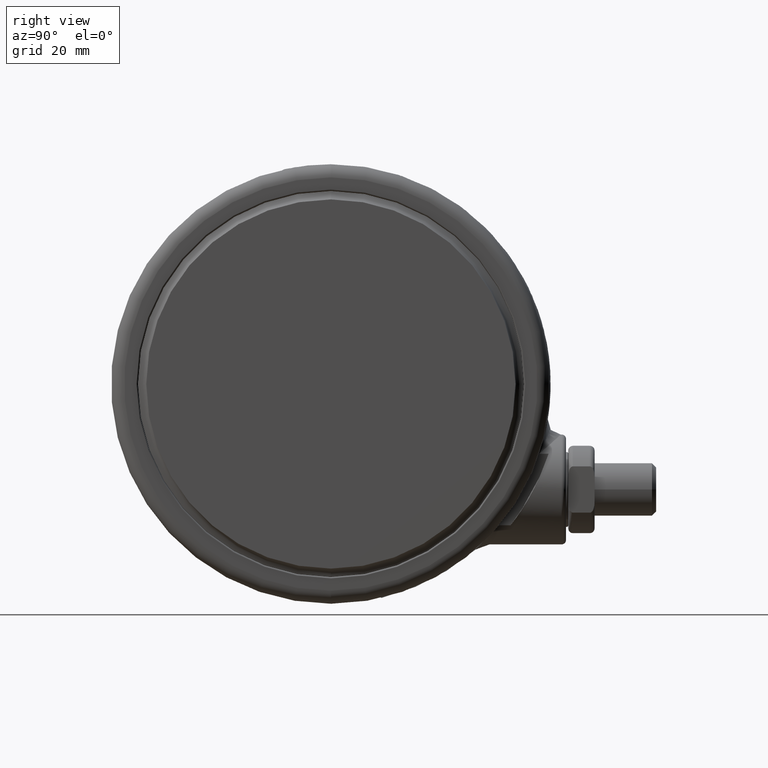
[diagram: clean part render]
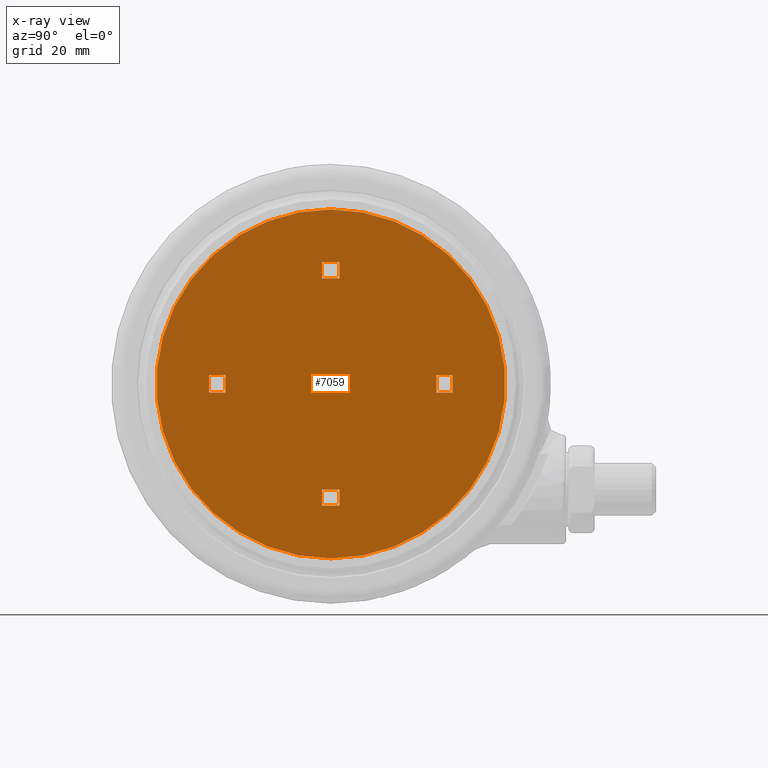
[diagram: x-ray — body ghosted, one internal face saturated and labeled with its STEP entity id]
A machine part, right view, then the same camera in x-ray: the body is ghosted and one INTERNAL B-rep face — a face not visible from any outside direction — is saturated and labeled: STEP entity #7059.
In plain terms, the highlighted planar face has unit normal (-1, 0, 0).
Its self-contained STEP definition (entity closure, byte-faithful):
#140 = VECTOR ( 'NONE', #25607, 1000.000000000000000 ) ;
#273 = VERTEX_POINT ( 'NONE', #28463 ) ;
#448 = EDGE_CURVE ( 'NONE', #24892, #6587, #24113, .T. ) ;
#613 = EDGE_LOOP ( 'NONE', ( #26790, #7334, #29076, #7454 ) ) ;
#907 = DIRECTION ( 'NONE',  ( -1.000000000000000000, 4.413456915335259200E-017, 4.709952866388670900E-033 ) ) ;
#1018 = DIRECTION ( 'NONE',  ( -1.000000000000000000, 4.413456915335259200E-017, 4.709952866388670900E-033 ) ) ;
#1118 = CARTESIAN_POINT ( 'NONE',  ( 24.00000000000000000, 1.999999999999915800, -46.79999999999990500 ) ) ;
#1181 = DIRECTION ( 'NONE',  ( -1.000000000000000000, 4.413456915335259200E-017, 4.709952866388670900E-033 ) ) ;
#1222 = CARTESIAN_POINT ( 'NONE',  ( 1.999999999999999100, -24.00000000000000000, -46.79999999999991200 ) ) ;
#1419 = VECTOR ( 'NONE', #1181, 1000.000000000000000 ) ;
#1559 = CARTESIAN_POINT ( 'NONE',  ( -6.745971164247315500E-015, -1.999999999999998200, -46.79999999999990500 ) ) ;
#1924 = CIRCLE ( 'NONE', #31912, 39.69999999999999600 ) ;
#2181 = EDGE_CURVE ( 'NONE', #21483, #18430, #2873, .T. ) ;
#2293 = CARTESIAN_POINT ( 'NONE',  ( 24.00000000000000000, 1.999999999999915800, -46.79999999999990500 ) ) ;
#2371 = ORIENTED_EDGE ( 'NONE', *, *, #2460, .F. ) ;
#2460 = EDGE_CURVE ( 'NONE', #12896, #6587, #5280, .T. ) ;
#2841 = DIRECTION ( 'NONE',  ( -3.535615907996487800E-015, -1.000000000000000000, -8.826913830670518300E-017 ) ) ;
#2870 = VECTOR ( 'NONE', #19458, 1000.000000000000000 ) ;
#2873 = LINE ( 'NONE', #18506, #22043 ) ;
#3012 = CARTESIAN_POINT ( 'NONE',  ( 1.222527565547866700E-015, 27.70000000000000300, -46.79999999999990500 ) ) ;
#3054 = ORIENTED_EDGE ( 'NONE', *, *, #12988, .T. ) ;
#3236 = EDGE_LOOP ( 'NONE', ( #26747, #17881, #16867, #2371 ) ) ;
#3380 = CARTESIAN_POINT ( 'NONE',  ( -1.999999999999998700, 27.70000000000000300, -46.79999999999990500 ) ) ;
#3489 = LINE ( 'NONE', #10615, #4252 ) ;
#3509 = VECTOR ( 'NONE', #22690, 1000.000000000000000 ) ;
#3777 = CARTESIAN_POINT ( 'NONE',  ( -1.999999999999999100, 24.00000000000000000, -46.79999999999990500 ) ) ;
#4252 = VECTOR ( 'NONE', #25622, 1000.000000000000000 ) ;
#4350 = EDGE_CURVE ( 'NONE', #28910, #20669, #13379, .T. ) ;
#4617 = FACE_BOUND ( 'NONE', #3236, .T. ) ;
#4676 = DIRECTION ( 'NONE',  ( 4.413456915335259200E-017, 1.000000000000000000, 2.689695003876226800E-016 ) ) ;
#4770 = ORIENTED_EDGE ( 'NONE', *, *, #7699, .T. ) ;
#4988 = ORIENTED_EDGE ( 'NONE', *, *, #4350, .T. ) ;
#5135 = ORIENTED_EDGE ( 'NONE', *, *, #30324, .F. ) ;
#5137 = VERTEX_POINT ( 'NONE', #19628 ) ;
#5172 = CARTESIAN_POINT ( 'NONE',  ( -2.000000000000000000, 1.338847513585790800E-015, -46.79999999999990500 ) ) ;
#5280 = LINE ( 'NONE', #24520, #11157 ) ;
#5481 = VERTEX_POINT ( 'NONE', #21246 ) ;
#5501 = CIRCLE ( 'NONE', #26264, 39.69999999999999600 ) ;
#5735 = LINE ( 'NONE', #13340, #18288 ) ;
#5792 = CARTESIAN_POINT ( 'NONE',  ( 1.787450050710780100E-015, 40.50000000000000000, -46.79999999999990500 ) ) ;
#6007 = CARTESIAN_POINT ( 'NONE',  ( -2.000000000000001300, -27.69999999999999600, -46.79999999999991200 ) ) ;
#6249 = VECTOR ( 'NONE', #19229, 1000.000000000000000 ) ;
#6345 = LINE ( 'NONE', #30249, #32145 ) ;
#6414 = EDGE_CURVE ( 'NONE', #28910, #273, #30096, .T. ) ;
#6587 = VERTEX_POINT ( 'NONE', #3777 ) ;
#6775 = CARTESIAN_POINT ( 'NONE',  ( 2.071189651961985400E-014, 2.000000000000001800, -46.79999999999990500 ) ) ;
#7059 = ADVANCED_FACE ( 'NONE', ( #31990, #30422, #11256, #4617, #23796 ), #8312, .F. ) ;
#7196 = CARTESIAN_POINT ( 'NONE',  ( -39.69999999999999600, 3.327981422412835400E-015, -46.79999999999990500 ) ) ;
#7334 = ORIENTED_EDGE ( 'NONE', *, *, #15486, .T. ) ;
#7454 = ORIENTED_EDGE ( 'NONE', *, *, #2181, .F. ) ;
#7593 = CARTESIAN_POINT ( 'NONE',  ( -2.136241782311115700E-014, -1.999999999999998200, -46.79999999999990500 ) ) ;
#7694 = DIRECTION ( 'NONE',  ( 4.413456915335259200E-017, 1.000000000000000000, 2.689695003876226800E-016 ) ) ;
#7699 = EDGE_CURVE ( 'NONE', #18735, #24570, #1924, .T. ) ;
#8067 = CARTESIAN_POINT ( 'NONE',  ( -27.69999999999959800, 40.50000000000000000, -46.79999999999990500 ) ) ;
#8312 = PLANE ( 'NONE',  #16390 ) ;
#8853 = CARTESIAN_POINT ( 'NONE',  ( 39.69999999999999600, 4.681568813233502500E-015, -46.79999999999990500 ) ) ;
#9507 = CARTESIAN_POINT ( 'NONE',  ( -24.00000000000000000, -1.999999999999747500, -46.79999999999990500 ) ) ;
#9708 = VERTEX_POINT ( 'NONE', #14182 ) ;
#9736 = EDGE_CURVE ( 'NONE', #20669, #28449, #17980, .T. ) ;
#9774 = EDGE_LOOP ( 'NONE', ( #4770, #23367 ) ) ;
#9882 = ORIENTED_EDGE ( 'NONE', *, *, #9736, .T. ) ;
#9991 = LINE ( 'NONE', #19664, #22527 ) ;
#10107 = EDGE_LOOP ( 'NONE', ( #4988, #9882, #31847, #23568 ) ) ;
#10282 = CARTESIAN_POINT ( 'NONE',  ( -24.00000000000000000, 2.000000000000252200, -46.79999999999990500 ) ) ;
#10432 = EDGE_CURVE ( 'NONE', #12896, #5137, #25799, .T. ) ;
#10615 = CARTESIAN_POINT ( 'NONE',  ( 1.999999999999999100, -24.00000000000000000, -46.79999999999991200 ) ) ;
#10626 = LINE ( 'NONE', #1559, #23939 ) ;
#10964 = VERTEX_POINT ( 'NONE', #31031 ) ;
#11157 = VECTOR ( 'NONE', #12026, 1000.000000000000000 ) ;
#11211 = CARTESIAN_POINT ( 'NONE',  ( 1.465618459832179300E-033, 1.575839027024737700E-015, -46.79999999999990500 ) ) ;
#11256 = FACE_BOUND ( 'NONE', #613, .T. ) ;
#11568 = DIRECTION ( 'NONE',  ( 8.142324776845440500E-034, -8.826913830670518300E-017, 1.000000000000000000 ) ) ;
#11668 = EDGE_CURVE ( 'NONE', #21450, #9708, #19885, .T. ) ;
#12026 = DIRECTION ( 'NONE',  ( -4.413456915335259200E-017, -1.000000000000000000, 9.243122377421230500E-017 ) ) ;
#12375 = ORIENTED_EDGE ( 'NONE', *, *, #27141, .T. ) ;
#12663 = CARTESIAN_POINT ( 'NONE',  ( 2.000000000000000900, 24.00000000000000000, -46.79999999999990500 ) ) ;
#12896 = VERTEX_POINT ( 'NONE', #3380 ) ;
#12988 = EDGE_CURVE ( 'NONE', #17967, #21450, #28014, .T. ) ;
#13027 = ORIENTED_EDGE ( 'NONE', *, *, #11668, .T. ) ;
#13340 = CARTESIAN_POINT ( 'NONE',  ( 2.000000000000000000, 1.812830540463684800E-015, -46.79999999999990500 ) ) ;
#13379 = LINE ( 'NONE', #8067, #140 ) ;
#13723 = DIRECTION ( 'NONE',  ( -1.000000000000000000, 4.413456915335259200E-017, 0.0000000000000000000 ) ) ;
#14182 = CARTESIAN_POINT ( 'NONE',  ( -2.000000000000000900, -24.00000000000000000, -46.79999999999991200 ) ) ;
#15129 = CARTESIAN_POINT ( 'NONE',  ( -27.69999999999999900, 2.000000000000293100, -46.79999999999990500 ) ) ;
#15486 = EDGE_CURVE ( 'NONE', #10964, #5481, #10626, .T. ) ;
#15500 = EDGE_CURVE ( 'NONE', #24570, #18735, #5501, .T. ) ;
#15841 = DIRECTION ( 'NONE',  ( -8.142324776845467900E-034, 8.826913830670518300E-017, -1.000000000000000000 ) ) ;
#15846 = DIRECTION ( 'NONE',  ( -4.413456915335259200E-017, -1.000000000000000000, 9.243122377421230500E-017 ) ) ;
#16390 = AXIS2_PLACEMENT_3D ( 'NONE', #5792, #15841, #907 ) ;
#16867 = ORIENTED_EDGE ( 'NONE', *, *, #448, .T. ) ;
#17881 = ORIENTED_EDGE ( 'NONE', *, *, #27986, .T. ) ;
#17967 = VERTEX_POINT ( 'NONE', #29118 ) ;
#17980 = LINE ( 'NONE', #6775, #6249 ) ;
#18225 = VECTOR ( 'NONE', #1018, 1000.000000000000000 ) ;
#18288 = VECTOR ( 'NONE', #15846, 1000.000000000000000 ) ;
#18323 = VECTOR ( 'NONE', #7694, 1000.000000000000000 ) ;
#18385 = EDGE_LOOP ( 'NONE', ( #3054, #13027, #12375, #5135 ) ) ;
#18399 = CARTESIAN_POINT ( 'NONE',  ( -1.999999999999999100, 24.00000000000000000, -46.79999999999990500 ) ) ;
#18430 = VERTEX_POINT ( 'NONE', #1118 ) ;
#18459 = VERTEX_POINT ( 'NONE', #1222 ) ;
#18506 = CARTESIAN_POINT ( 'NONE',  ( 7.396492467738625300E-015, 2.000000000000001800, -46.79999999999990500 ) ) ;
#18735 = VERTEX_POINT ( 'NONE', #7196 ) ;
#19014 = DIRECTION ( 'NONE',  ( -1.000000000000000000, 3.535615907996487800E-015, 1.807003620809178100E-016 ) ) ;
#19229 = DIRECTION ( 'NONE',  ( 1.000000000000000000, -1.051857858568275400E-014, 1.807003620809165500E-016 ) ) ;
#19458 = DIRECTION ( 'NONE',  ( -1.051857858568275400E-014, -1.000000000000000000, -8.826913830670518300E-017 ) ) ;
#19628 = CARTESIAN_POINT ( 'NONE',  ( 2.000000000000001300, 27.70000000000000300, -46.79999999999990500 ) ) ;
#19664 = CARTESIAN_POINT ( 'NONE',  ( 2.000000000000000000, 1.162309236972380500E-015, -46.79999999999990500 ) ) ;
#19885 = LINE ( 'NONE', #5172, #18323 ) ;
#20123 = EDGE_CURVE ( 'NONE', #28449, #273, #29463, .T. ) ;
#20491 = DIRECTION ( 'NONE',  ( 1.000000000000000000, -4.413456915335259200E-017, -4.709952866388670900E-033 ) ) ;
#20669 = VERTEX_POINT ( 'NONE', #15129 ) ;
#21027 = DIRECTION ( 'NONE',  ( -1.000000000000000000, 3.535615907996487800E-015, 1.807003620809178100E-016 ) ) ;
#21246 = CARTESIAN_POINT ( 'NONE',  ( 24.00000000000000000, -2.000000000000084400, -46.79999999999990500 ) ) ;
#21450 = VERTEX_POINT ( 'NONE', #6007 ) ;
#21483 = VERTEX_POINT ( 'NONE', #26262 ) ;
#22043 = VECTOR ( 'NONE', #21027, 1000.000000000000000 ) ;
#22309 = DIRECTION ( 'NONE',  ( 3.535615907996487800E-015, 1.000000000000000000, 8.826913830670518300E-017 ) ) ;
#22527 = VECTOR ( 'NONE', #4676, 1000.000000000000000 ) ;
#22690 = DIRECTION ( 'NONE',  ( 1.000000000000000000, -1.051857858568275400E-014, 1.807003620809165500E-016 ) ) ;
#23367 = ORIENTED_EDGE ( 'NONE', *, *, #15500, .T. ) ;
#23568 = ORIENTED_EDGE ( 'NONE', *, *, #6414, .F. ) ;
#23796 = FACE_OUTER_BOUND ( 'NONE', #9774, .T. ) ;
#23939 = VECTOR ( 'NONE', #19014, 1000.000000000000000 ) ;
#24113 = LINE ( 'NONE', #18399, #18225 ) ;
#24520 = CARTESIAN_POINT ( 'NONE',  ( -2.000000000000000000, 1.989368817077094900E-015, -46.79999999999990500 ) ) ;
#24570 = VERTEX_POINT ( 'NONE', #8853 ) ;
#24892 = VERTEX_POINT ( 'NONE', #12663 ) ;
#25607 = DIRECTION ( 'NONE',  ( 1.051857858568275400E-014, 1.000000000000000000, 8.826913830670518300E-017 ) ) ;
#25622 = DIRECTION ( 'NONE',  ( 1.000000000000000000, -4.413456915335259200E-017, -4.709952866388670900E-033 ) ) ;
#25799 = LINE ( 'NONE', #3012, #32399 ) ;
#25939 = EDGE_CURVE ( 'NONE', #5481, #18430, #27426, .T. ) ;
#26262 = CARTESIAN_POINT ( 'NONE',  ( 27.69999999999999900, 1.999999999999905400, -46.79999999999990500 ) ) ;
#26264 = AXIS2_PLACEMENT_3D ( 'NONE', #26594, #11568, #29083 ) ;
#26594 = CARTESIAN_POINT ( 'NONE',  ( 1.465618459832179300E-033, 1.575839027024737700E-015, -46.79999999999990500 ) ) ;
#26647 = VECTOR ( 'NONE', #22309, 1000.000000000000000 ) ;
#26747 = ORIENTED_EDGE ( 'NONE', *, *, #10432, .T. ) ;
#26790 = ORIENTED_EDGE ( 'NONE', *, *, #32111, .T. ) ;
#27141 = EDGE_CURVE ( 'NONE', #9708, #18459, #3489, .T. ) ;
#27426 = LINE ( 'NONE', #2293, #26647 ) ;
#27986 = EDGE_CURVE ( 'NONE', #5137, #24892, #5735, .T. ) ;
#28014 = LINE ( 'NONE', #28598, #1419 ) ;
#28449 = VERTEX_POINT ( 'NONE', #10282 ) ;
#28463 = CARTESIAN_POINT ( 'NONE',  ( -24.00000000000000000, -1.999999999999747500, -46.79999999999990500 ) ) ;
#28598 = CARTESIAN_POINT ( 'NONE',  ( -1.222527565547866700E-015, -27.69999999999999600, -46.79999999999991200 ) ) ;
#28721 = DIRECTION ( 'NONE',  ( 8.142324776845440500E-034, -8.826913830670518300E-017, 1.000000000000000000 ) ) ;
#28910 = VERTEX_POINT ( 'NONE', #29392 ) ;
#29076 = ORIENTED_EDGE ( 'NONE', *, *, #25939, .T. ) ;
#29083 = DIRECTION ( 'NONE',  ( -1.000000000000000000, 4.413456915335259200E-017, 0.0000000000000000000 ) ) ;
#29118 = CARTESIAN_POINT ( 'NONE',  ( 1.999999999999998700, -27.69999999999999600, -46.79999999999991200 ) ) ;
#29392 = CARTESIAN_POINT ( 'NONE',  ( -27.69999999999999900, -1.999999999999706900, -46.79999999999990500 ) ) ;
#29463 = LINE ( 'NONE', #9507, #2870 ) ;
#30096 = LINE ( 'NONE', #7593, #3509 ) ;
#30249 = CARTESIAN_POINT ( 'NONE',  ( 27.70000000000000300, 40.50000000000000000, -46.79999999999990500 ) ) ;
#30324 = EDGE_CURVE ( 'NONE', #17967, #18459, #9991, .T. ) ;
#30422 = FACE_BOUND ( 'NONE', #18385, .T. ) ;
#31031 = CARTESIAN_POINT ( 'NONE',  ( 27.69999999999999900, -2.000000000000094600, -46.79999999999990500 ) ) ;
#31847 = ORIENTED_EDGE ( 'NONE', *, *, #20123, .T. ) ;
#31912 = AXIS2_PLACEMENT_3D ( 'NONE', #11211, #28721, #13723 ) ;
#31990 = FACE_BOUND ( 'NONE', #10107, .T. ) ;
#32111 = EDGE_CURVE ( 'NONE', #21483, #10964, #6345, .T. ) ;
#32145 = VECTOR ( 'NONE', #2841, 1000.000000000000000 ) ;
#32399 = VECTOR ( 'NONE', #20491, 1000.000000000000000 ) ;